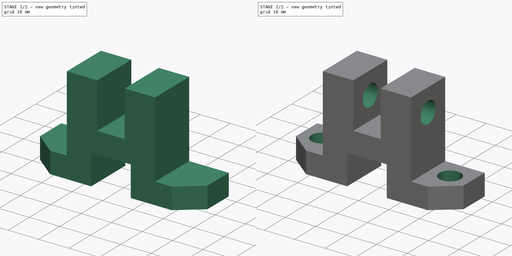
[diagram: build sequence overview — one tinted view per stage of 2, left to right]
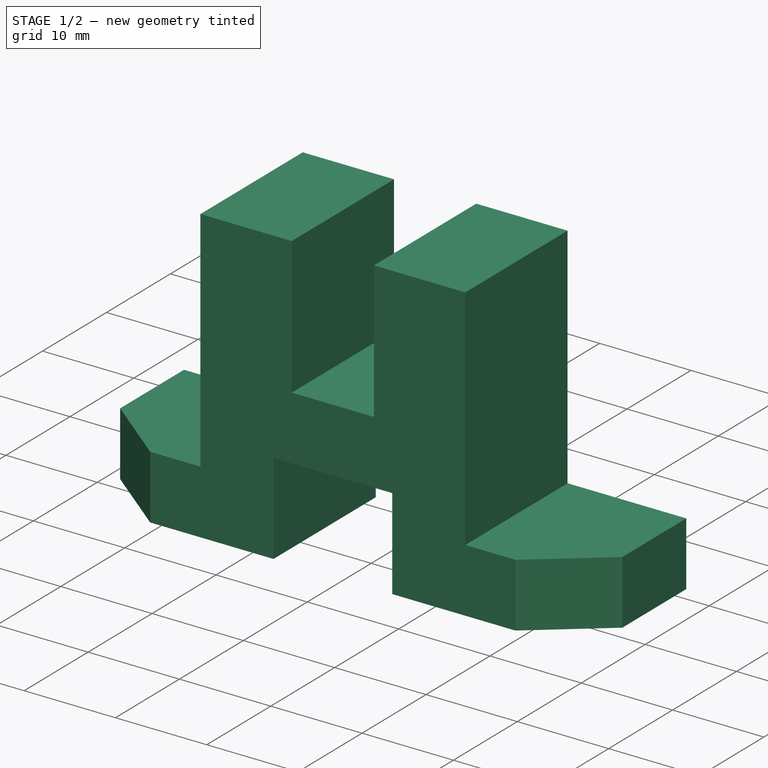
[diagram: stage 1 of 2 — iso view after this stage's code; geometry added in this stage tinted green]
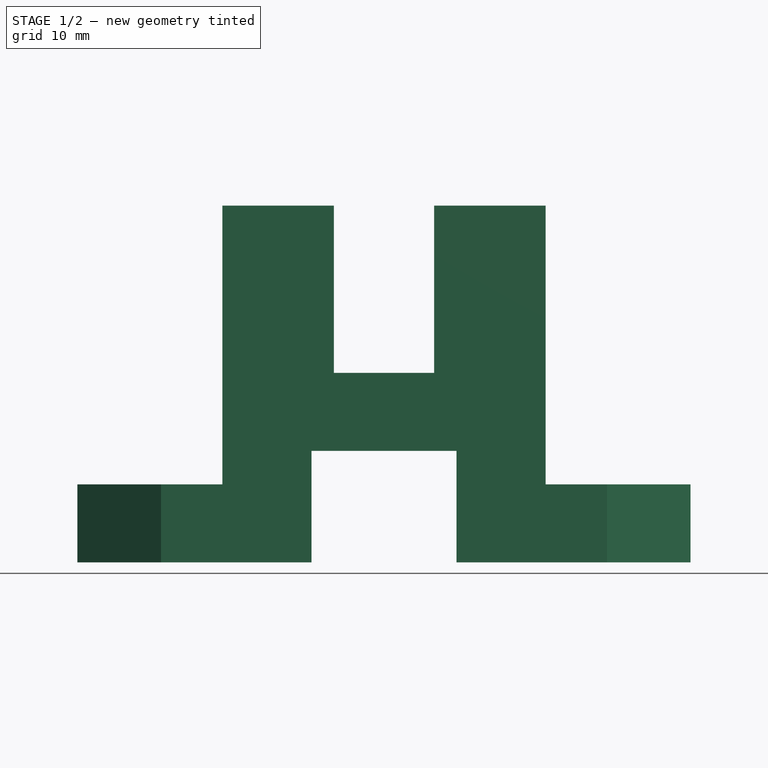
[diagram: stage 1 of 2 — front view after this stage's code; geometry added in this stage tinted green]
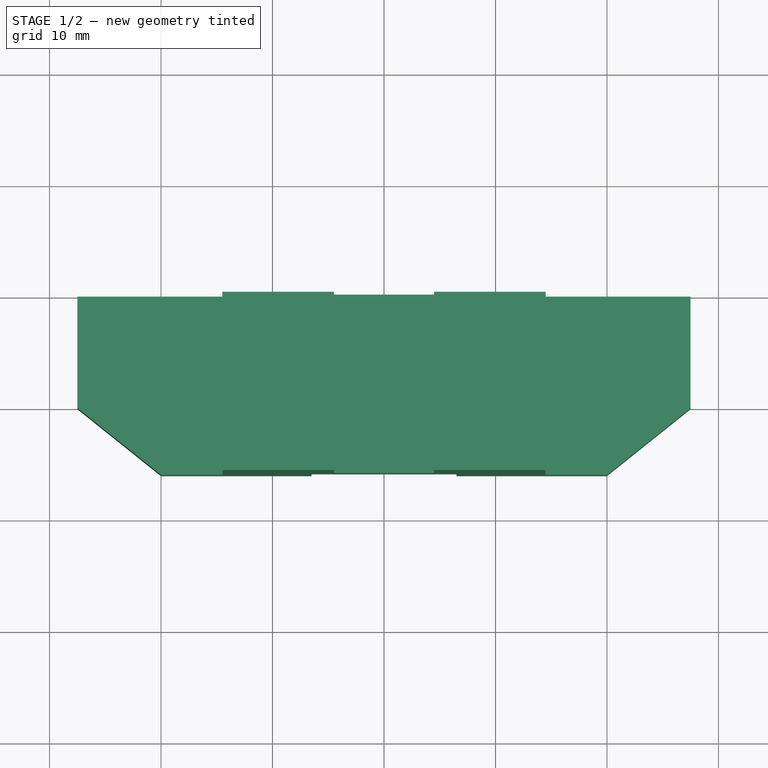
[diagram: stage 1 of 2 — top view after this stage's code; geometry added in this stage tinted green]
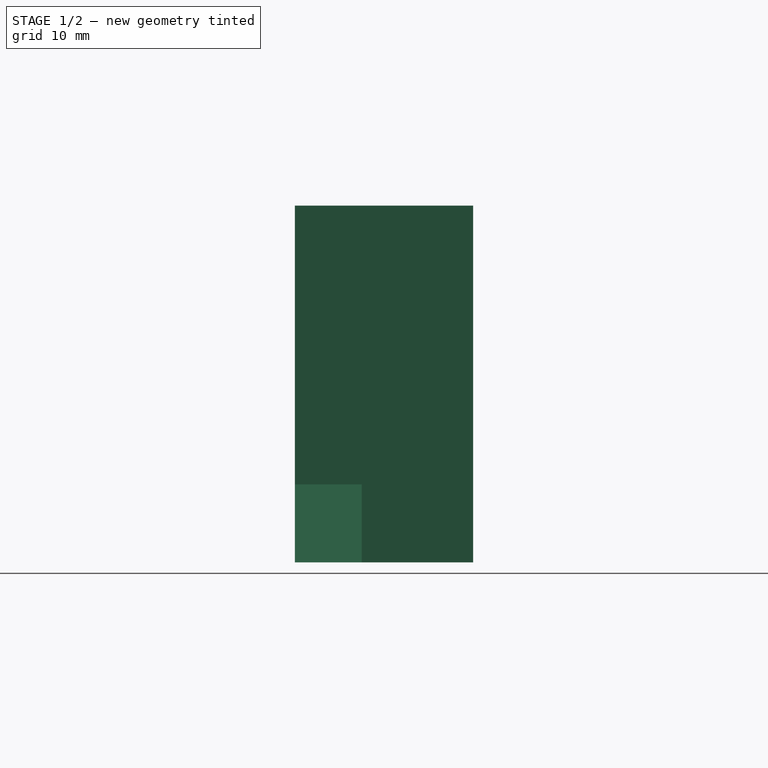
[diagram: stage 1 of 2 — right view after this stage's code; geometry added in this stage tinted green]
FCSTD DOCUMENT  (FreeCAD 0.18R4 (GitTag))
Label: Object5
License: All rights reserved
LicenseURL: http://en.wikipedia.org/wiki/All_rights_reserved
objects: Sketcher::SketchObject×4, PartDesign::Pocket×3, PartDesign::Pad×1, PartDesign::Body×1
note: 13 computed .brp shape members not serialized (recipe doc carries the construction recipe); baked Part::Feature solids carry a one-line shape summary decoded from their .brp

FEATURE [Sketcher::SketchObject] Sketch
  MapMode = 5
  Placement = pos=(0,0,0) rot=(1,0,0;1.5708rad)
  Support = -> [XZ_Plane]
  sketch-geometry (16):
    g0: LineSegment StartX=-27.5 StartY=7 StartZ=0 EndX=-27.5 EndY=0 EndZ=0
    g1: LineSegment StartX=-27.5 StartY=0 StartZ=0 EndX=-6.5 EndY=0 EndZ=0
    g2: LineSegment StartX=-6.5 StartY=0 StartZ=0 EndX=-6.5 EndY=10 EndZ=0
    g3: LineSegment StartX=-6.5 StartY=10 StartZ=0 EndX=6.5 EndY=10 EndZ=0
    g4: LineSegment StartX=6.5 StartY=10 StartZ=0 EndX=6.5 EndY=0 EndZ=0
    g5: LineSegment StartX=6.5 StartY=0 StartZ=0 EndX=27.5 EndY=0 EndZ=0
    g6: LineSegment StartX=27.5 StartY=0 StartZ=0 EndX=27.5 EndY=7 EndZ=0
    g7: LineSegment StartX=27.5 StartY=7 StartZ=0 EndX=14.5 EndY=7 EndZ=0
    g8: LineSegment StartX=14.5 StartY=7 StartZ=0 EndX=14.5 EndY=32 EndZ=0
    g9: LineSegment StartX=14.5 StartY=32 StartZ=0 EndX=4.5 EndY=32 EndZ=0
    g10: LineSegment StartX=4.5 StartY=32 StartZ=0 EndX=4.5 EndY=17 EndZ=0
    g11: LineSegment StartX=4.5 StartY=17 StartZ=0 EndX=-4.5 EndY=17 EndZ=0
    g12: LineSegment StartX=-4.5 StartY=17 StartZ=0 EndX=-4.5 EndY=32 EndZ=0
    g13: LineSegment StartX=-4.5 StartY=32 StartZ=0 EndX=-14.5 EndY=32 EndZ=0
    g14: LineSegment StartX=-14.5 StartY=32 StartZ=0 EndX=-14.5 EndY=7 EndZ=0
    g15: LineSegment StartX=-14.5 StartY=7 StartZ=0 EndX=-27.5 EndY=7 EndZ=0
  constraints (44):
    c: Vertical(g0)
    c: Coincident(g0,g1)
    c: Horizontal(g1)
    c: Coincident(g1,g2)
    c: Vertical(g2)
    c: Coincident(g2,g3)
    c: Horizontal(g3)
    c: Coincident(g3,g4)
    c: PointOnObject(g4,g-1)
    c: Vertical(g4)
    c: Coincident(g4,g5)
    c: Coincident(g5,g6)
    c: Vertical(g6)
    c: Coincident(g6,g7)
    c: Horizontal(g7)
    c: Coincident(g7,g8)
    c: Vertical(g8)
    c: Coincident(g8,g9)
    c: Horizontal(g9)
    c: Coincident(g9,g10)
    c: Vertical(g10)
    c: Coincident(g10,g11)
    c: Horizontal(g11)
    c: Coincident(g11,g12)
    c: Vertical(g12)
    c: Coincident(g12,g13)
    c: Horizontal(g13)
    c: Coincident(g13,g14)
    c: Vertical(g14)
    c: Coincident(g14,g15)
    c: Coincident(g15,g0)
    c: Symmetric(g4,g1,g-2)
    c: Symmetric(g0,g5,g-2)
    c: Horizontal(g15)
    c: Symmetric(g14,g7,g-2)
    c: Symmetric(g12,g9,g-2)
    c: DistanceX(g9,g9) = 10
    c: DistanceX(g11,g11) = 9
    c: DistanceX(g3,g3) = 13
    c: DistanceX(g7,g7) = 13
    c: DistanceY(g-1,g8) = 32
    c: DistanceY(g6,g6) = 7
    c: DistanceY(g10,g10) = 15
    c: DistanceY(g4,g4) = 10
FEATURE [PartDesign::Pad] Pad
  Length = 16
  Length2 = 100
  Placement = pos=(0,0,0) rot=(1,0,0;1.5708rad)
  Profile = -> Sketch
  Type = 0
FEATURE [Sketcher::SketchObject] Sketch001
  MapMode = 5
  Placement = pos=(0,0,0) rot=(1,0,0;3.14159rad)
  Support = -> [Pad]
  sketch-geometry (6):
    g0: LineSegment StartX=-27.5 StartY=16 StartZ=0 EndX=-27.5 EndY=10 EndZ=0
    g1: LineSegment StartX=-27.5 StartY=10 StartZ=0 EndX=-20 EndY=16 EndZ=0
    g2: LineSegment StartX=-20 StartY=16 StartZ=0 EndX=-27.5 EndY=16 EndZ=0
    g3: LineSegment StartX=20 StartY=16 StartZ=0 EndX=27.5 EndY=16 EndZ=0
    g4: LineSegment StartX=27.5 StartY=16 StartZ=0 EndX=27.5 EndY=10 EndZ=0
    g5: LineSegment StartX=27.5 StartY=10 StartZ=0 EndX=20 EndY=16 EndZ=0
  constraints (18):
    c: Vertical(g0)
    c: Coincident(g0,g1)
    c: Coincident(g1,g2)
    c: Coincident(g2,g0)
    c: Horizontal(g2)
    c: DistanceY(g0) = 16
    c: DistanceY(g-1,g0) = 10
    c: DistanceX(g1,g-1) = 20
    c: DistanceX(g0,g-1) = 27.5
    c: Horizontal(g3)
    c: Coincident(g3,g4)
    c: Vertical(g4)
    c: Coincident(g4,g5)
    c: Coincident(g5,g3)
    c: DistanceY(g-1,g3) = 16
    c: DistanceY(g-1,g4) = 10
    c: DistanceX(g-1,g3) = 27.5
    c: DistanceX(g-1,g3) = 20
FEATURE [PartDesign::Pocket] Pocket
  BaseFeature = -> Pad
  Length = 7
  Length2 = 100
  Placement = pos=(0,0,0) rot=(1,0,0;1.5708rad)
  Profile = -> Sketch001
  Type = 0
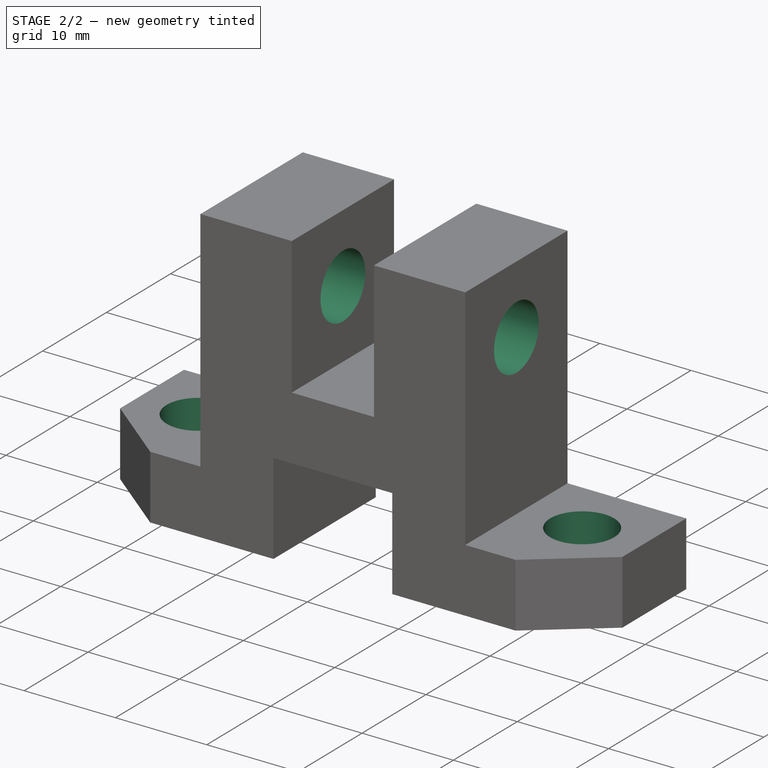
[diagram: stage 2 of 2 — iso view after this stage's code; geometry added in this stage tinted green]
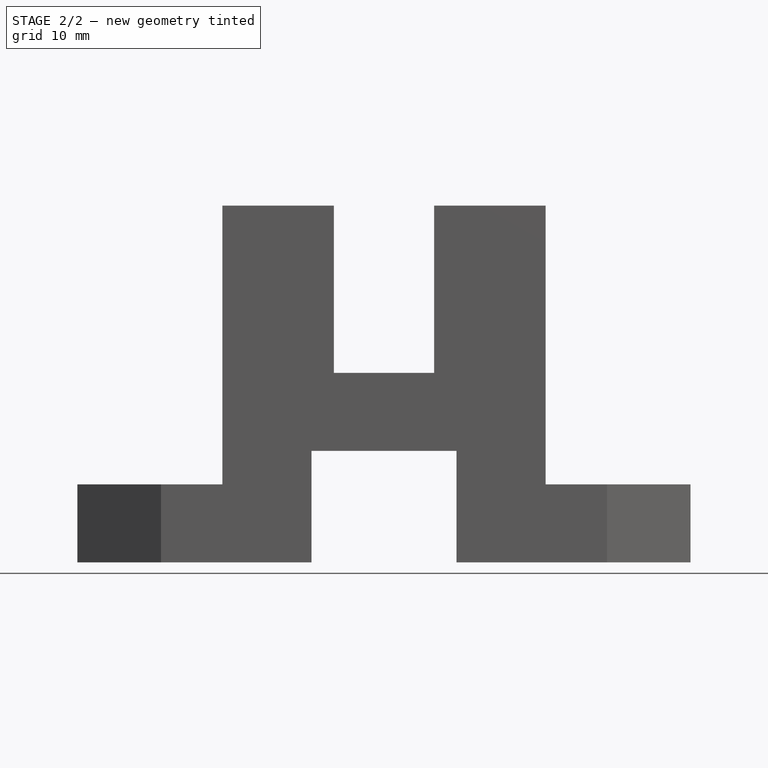
[diagram: stage 2 of 2 — front view after this stage's code; geometry added in this stage tinted green]
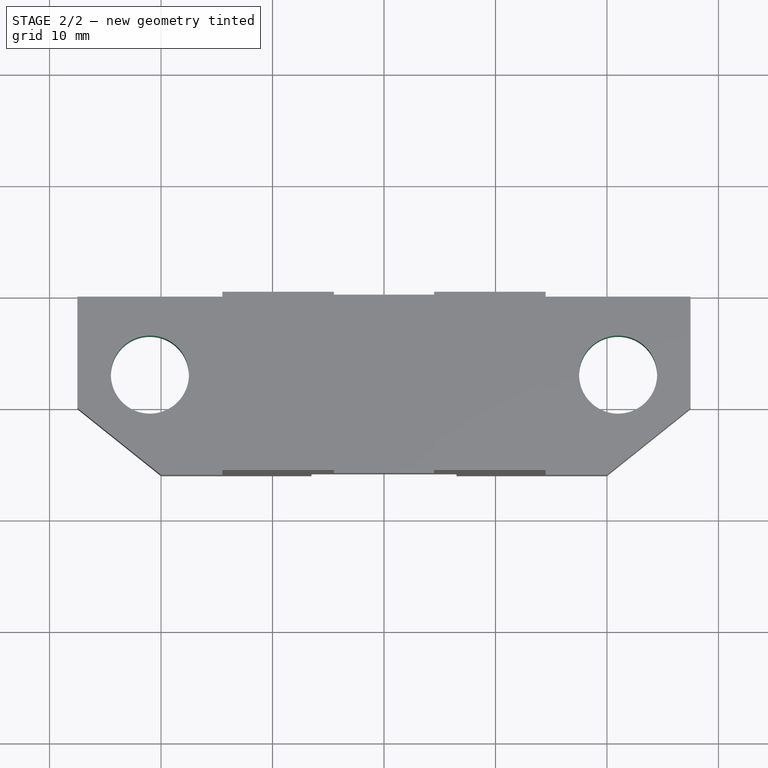
[diagram: stage 2 of 2 — top view after this stage's code; geometry added in this stage tinted green]
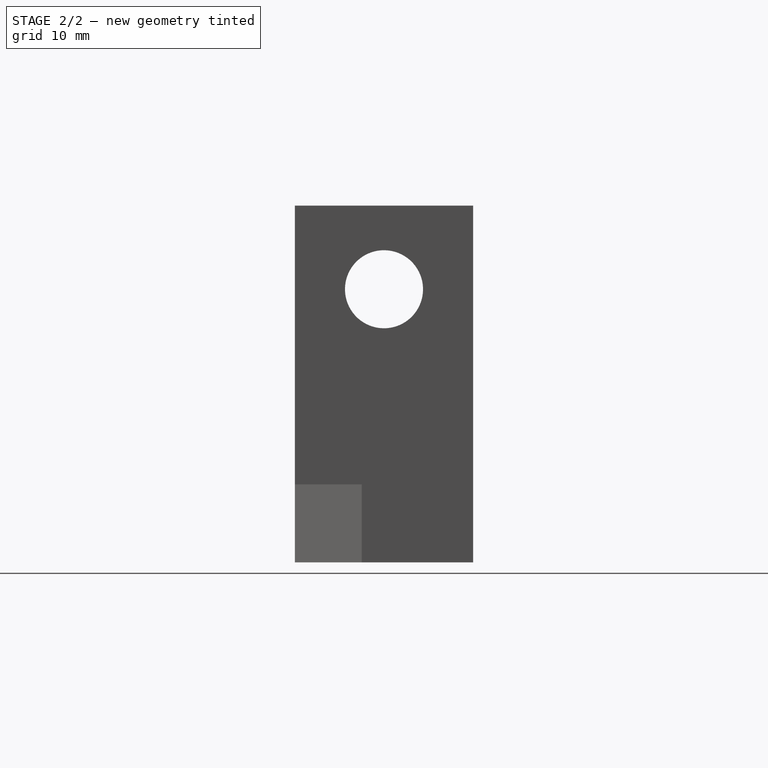
[diagram: stage 2 of 2 — right view after this stage's code; geometry added in this stage tinted green]
FEATURE [Sketcher::SketchObject] Sketch002
  MapMode = 5
  Placement = pos=(14.5,0,0) rot=(0.707107,0,0.707107;3.14159rad)
  Support = -> [Pocket]
  sketch-geometry (1):
    g0: Circle CenterX=24.5 CenterY=8 CenterZ=0 NormalX=0 NormalY=0 NormalZ=1 AngleXU=0 Radius=3.5
  constraints (3):
    c: Radius(g0) = 3.5
    c: DistanceY(g-1,g0) = 8
    c: DistanceX(g-1,g0) = 24.5
FEATURE [PartDesign::Pocket] Pocket001
  BaseFeature = -> Pocket
  Length = 5
  Length2 = 100
  Placement = pos=(0,0,0) rot=(1,0,0;1.5708rad)
  Profile = -> Sketch002
  Type = 1
FEATURE [Sketcher::SketchObject] Sketch003
  MapMode = 5
  Placement = pos=(0,1.09e-14,7) rot=(0,0,1;3.14159rad)
  Support = -> [Pocket001]
  sketch-geometry (2):
    g0: Circle CenterX=21 CenterY=7 CenterZ=0 NormalX=0 NormalY=0 NormalZ=1 AngleXU=0 Radius=3.5
    g1: Circle CenterX=-21 CenterY=7 CenterZ=0 NormalX=0 NormalY=0 NormalZ=1 AngleXU=0 Radius=3.5
  constraints (5):
    c: Symmetric(g1,g0,g-2)
    c: Radius(g1) = 3.5
    c: Equal(g1,g0)
    c: DistanceY(g-1,g1) = 7
    c: DistanceX(g1,g0) = 42
FEATURE [PartDesign::Pocket] Pocket002
  BaseFeature = -> Pocket001
  Length = 7
  Length2 = 100
  Placement = pos=(0,0,0) rot=(1,0,0;1.5708rad)
  Profile = -> Sketch003
  Type = 0
FEATURE [PartDesign::Body] Body
  Group = -> [Sketch,Pad,Sketch001,Pocket,Sketch002,Pocket001,Sketch003,Pocket002]
  Origin = -> Origin
  Tip = -> Pocket002
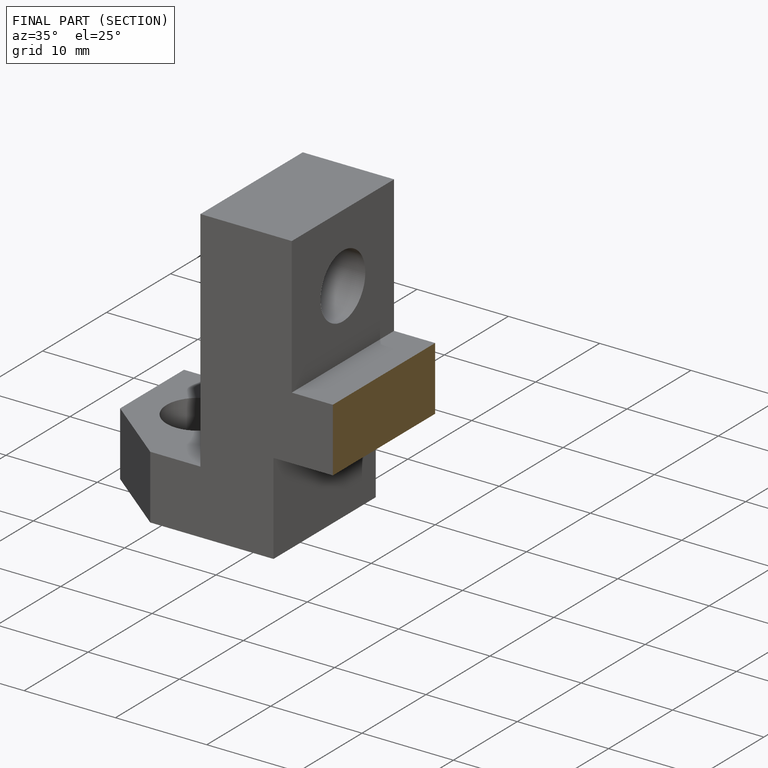
[diagram: finished part — half-section view (interior)]
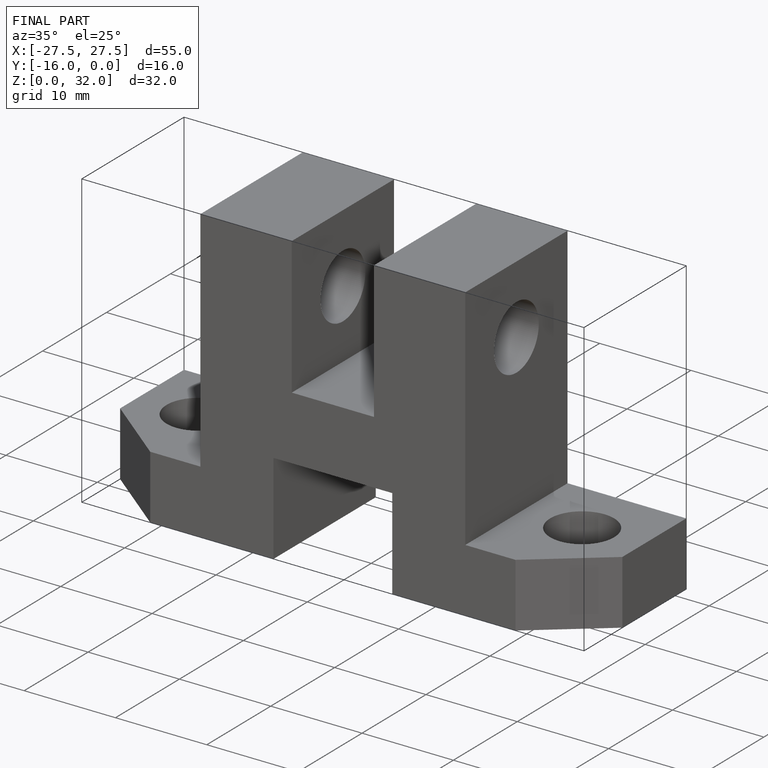
[diagram: finished part — iso view with bounding-box wireframe]
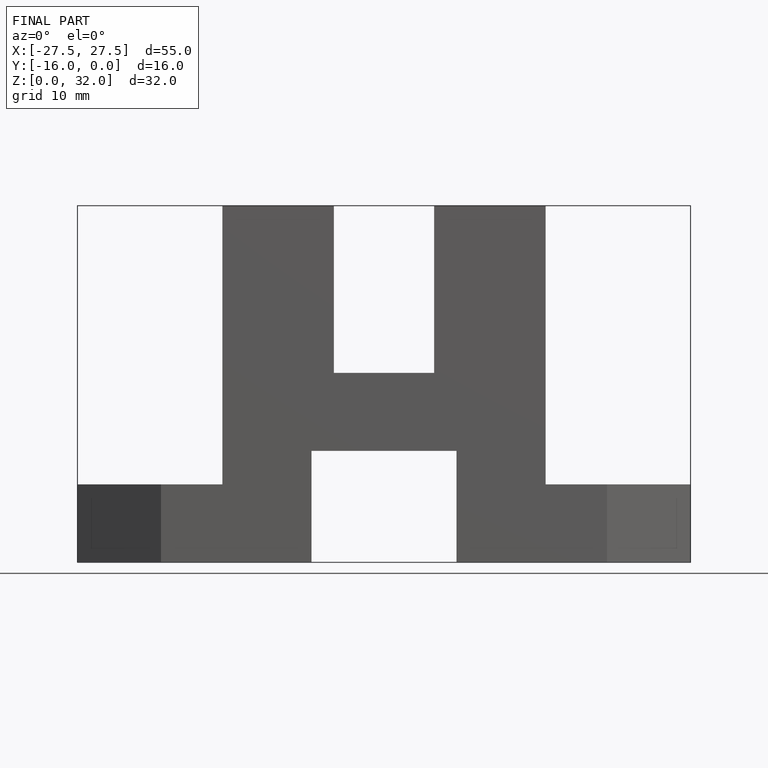
[diagram: finished part — front view with bounding-box wireframe]
